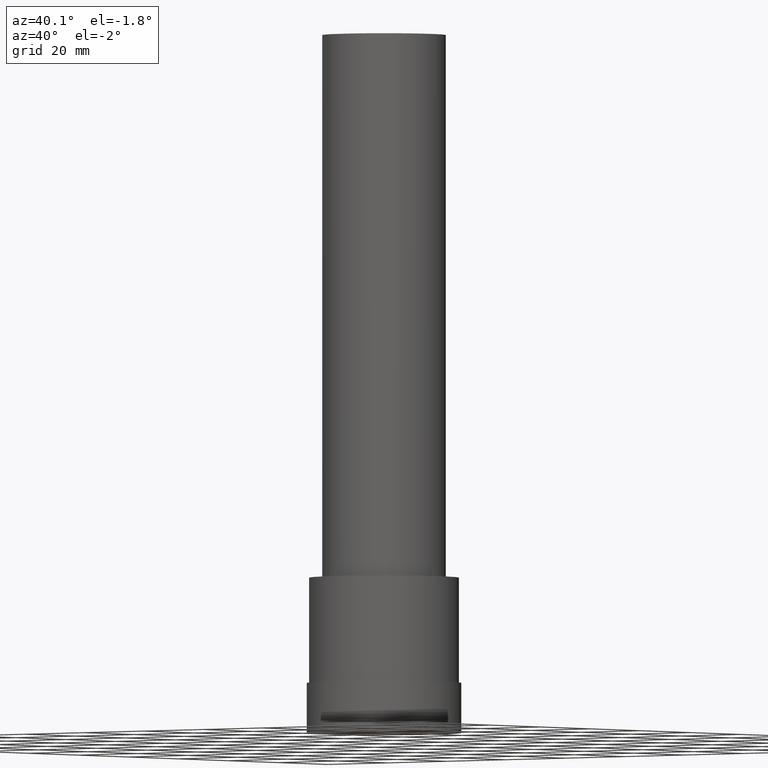
[diagram: clean part render]
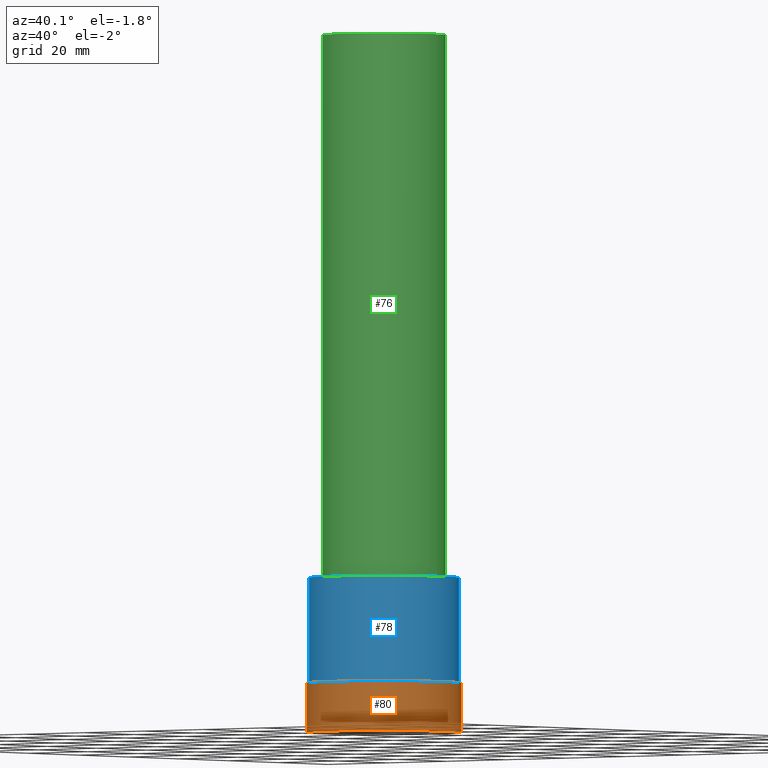
[diagram: same view with three faces highlighted in distinct colors, each labeled with its STEP entity id]
A machine part, auxiliary view with three faces highlighted in distinct colors.
Their STEP definitions:

[orange] entity #80 — the highlighted cylindrical surface (bore or boss wall) has radius 20 mm, axis along (-0, 0, 1).
#80=ADVANCED_FACE('',(#97,#98),#99,.T.);
#97=FACE_BOUND('',#116,.T.);
#98=FACE_BOUND('',#117,.T.);
#99=CYLINDRICAL_SURFACE('',#118,20.0);
#116=EDGE_LOOP('',(#145));
#117=EDGE_LOOP('',(#146));
#118=AXIS2_PLACEMENT_3D('',#147,#148,#149);
#145=ORIENTED_EDGE('',*,*,#159,.F.);
#146=ORIENTED_EDGE('',*,*,#158,.T.);
#147=CARTESIAN_POINT('',(-3.93271671757055E-016,1.22140569687396E-015,6.42261380229576));
#148=DIRECTION('',(-6.12323399573677E-017,1.90172682722627E-016,1.0));
#149=DIRECTION('',(6.81756562830752E-033,1.0,-1.90172682722627E-016));
#158=EDGE_CURVE('',#168,#168,#169,.T.);
#159=EDGE_CURVE('',#170,#170,#171,.T.);
#168=VERTEX_POINT('',#180);
#169=CIRCLE('',#181,20.0);
#170=VERTEX_POINT('',#182);
#171=CIRCLE('',#183,20.0);
#180=CARTESIAN_POINT('',(-7.86543343514112E-016,20.0,12.8452276045915));
#181=AXIS2_PLACEMENT_3D('',#196,#197,#198);
#182=CARTESIAN_POINT('',(0.0,20.0,0.0));
#183=AXIS2_PLACEMENT_3D('',#199,#200,#201);
#196=CARTESIAN_POINT('',(-7.86543343514112E-016,2.44281139374791E-015,12.8452276045915));
#197=DIRECTION('',(6.12323399573676E-017,-1.90172682722627E-016,-1.0));
#198=DIRECTION('',(6.81756562830752E-033,1.0,-1.90172682722627E-016));
#199=CARTESIAN_POINT('',(0.0,0.0,0.0));
#200=DIRECTION('',(6.12323399573676E-017,-1.90172682722627E-016,-1.0));
#201=DIRECTION('',(6.81756562830752E-033,1.0,-1.90172682722627E-016));

[blue] entity #78 — the highlighted cylindrical surface (bore or boss wall) has radius 19.4 mm, axis along (-0, 0, 1).
#78=ADVANCED_FACE('',(#91,#92),#93,.T.);
#91=FACE_BOUND('',#110,.T.);
#92=FACE_BOUND('',#111,.T.);
#93=CYLINDRICAL_SURFACE('',#112,19.4);
#110=EDGE_LOOP('',(#135));
#111=EDGE_LOOP('',(#136));
#112=AXIS2_PLACEMENT_3D('',#137,#138,#139);
#135=ORIENTED_EDGE('',*,*,#157,.F.);
#136=ORIENTED_EDGE('',*,*,#156,.T.);
#137=CARTESIAN_POINT('',(-1.61791847090441E-015,5.02485935132653E-015,26.4226138022958));
#138=DIRECTION('',(-6.12323399573677E-017,1.90172682722627E-016,1.0));
#139=DIRECTION('',(6.81756562830752E-033,1.0,-1.90172682722627E-016));
#156=EDGE_CURVE('',#164,#164,#165,.T.);
#157=EDGE_CURVE('',#166,#166,#167,.T.);
#164=VERTEX_POINT('',#176);
#165=CIRCLE('',#177,19.4);
#166=VERTEX_POINT('',#178);
#167=CIRCLE('',#179,19.4);
#176=CARTESIAN_POINT('',(-2.44929359829472E-015,19.4000000000001,40.0000000000002));
#177=AXIS2_PLACEMENT_3D('',#190,#191,#192);
#178=CARTESIAN_POINT('',(-7.86543343514112E-016,19.4,12.8452276045915));
#179=AXIS2_PLACEMENT_3D('',#193,#194,#195);
#190=CARTESIAN_POINT('',(-2.44929359829472E-015,7.60690730890513E-015,40.0000000000002));
#191=DIRECTION('',(6.12323399573677E-017,-1.90172682722627E-016,-1.0));
#192=DIRECTION('',(6.81756562830752E-033,1.0,-1.90172682722627E-016));
#193=CARTESIAN_POINT('',(-7.86543343514112E-016,2.44281139374791E-015,12.8452276045915));
#194=DIRECTION('',(6.12323399573677E-017,-1.90172682722627E-016,-1.0));
#195=DIRECTION('',(6.81756562830752E-033,1.0,-1.90172682722627E-016));

[green] entity #76 — the highlighted cylindrical surface (bore or boss wall) has radius 16 mm, axis along (-0, 0, 1).
#76=ADVANCED_FACE('',(#85,#86),#87,.T.);
#85=FACE_BOUND('',#104,.T.);
#86=FACE_BOUND('',#105,.T.);
#87=CYLINDRICAL_SURFACE('',#106,16.0);
#104=EDGE_LOOP('',(#125));
#105=EDGE_LOOP('',(#126));
#106=AXIS2_PLACEMENT_3D('',#127,#128,#129);
#125=ORIENTED_EDGE('',*,*,#155,.F.);
#126=ORIENTED_EDGE('',*,*,#154,.T.);
#127=CARTESIAN_POINT('',(-6.73555739531044E-015,2.0918995099489E-014,110.0));
#128=DIRECTION('',(-6.12323399573676E-017,1.90172682722627E-016,1.0));
#129=DIRECTION('',(6.81756562830752E-033,1.0,-1.90172682722627E-016));
#154=EDGE_CURVE('',#160,#160,#161,.T.);
#155=EDGE_CURVE('',#162,#162,#163,.T.);
#160=VERTEX_POINT('',#172);
#161=CIRCLE('',#173,16.0000000000001);
#162=VERTEX_POINT('',#174);
#163=CIRCLE('',#175,16.0);
#172=CARTESIAN_POINT('',(-1.10218211923262E-014,16.0000000000001,180.0));
#173=AXIS2_PLACEMENT_3D('',#184,#185,#186);
#174=CARTESIAN_POINT('',(-2.4492935982947E-015,16.0,39.9999999999999));
#175=AXIS2_PLACEMENT_3D('',#187,#188,#189);
#184=CARTESIAN_POINT('',(-1.10218211923262E-014,3.42310828900729E-014,180.0));
#185=DIRECTION('',(6.12323399573677E-017,-1.90172682722627E-016,-1.0));
#186=DIRECTION('',(6.81756562830752E-033,1.0,-1.90172682722627E-016));
#187=CARTESIAN_POINT('',(-2.4492935982947E-015,7.60690730890508E-015,39.9999999999999));
#188=DIRECTION('',(6.12323399573677E-017,-1.90172682722627E-016,-1.0));
#189=DIRECTION('',(6.81756562830752E-033,1.0,-1.90172682722627E-016));